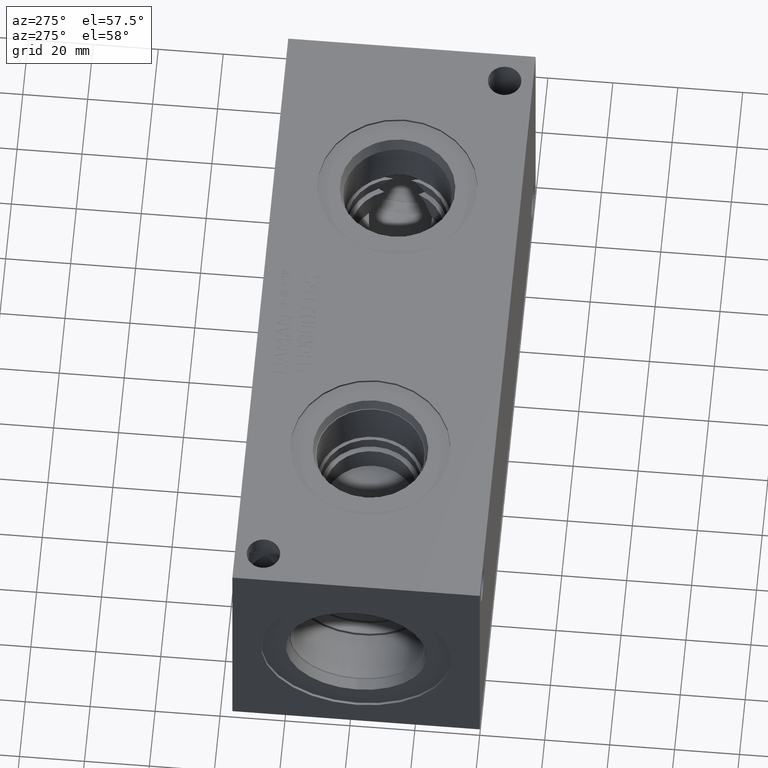
[diagram: clean part render]
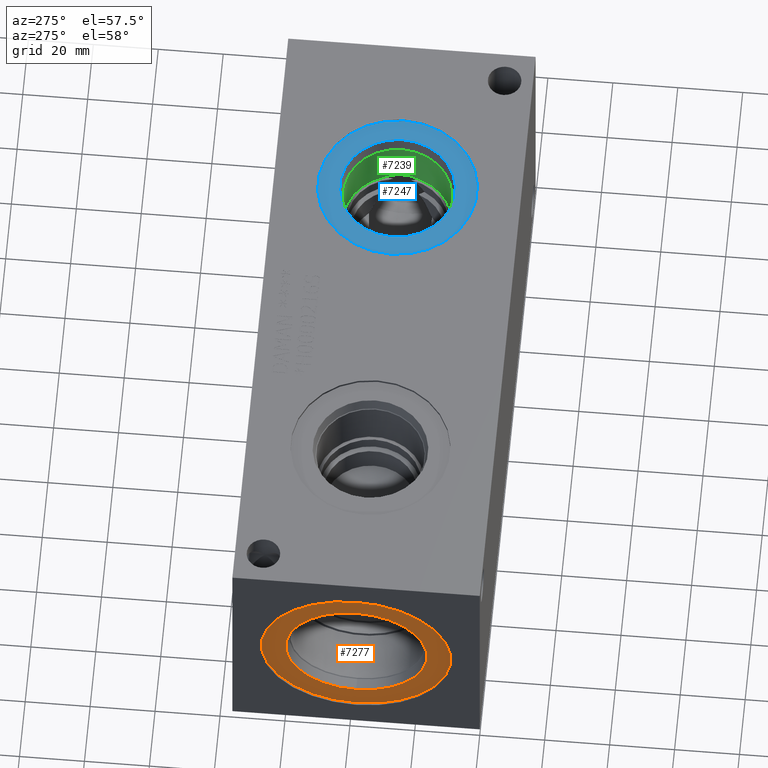
[diagram: same view with three faces highlighted in distinct colors, each labeled with its STEP entity id]
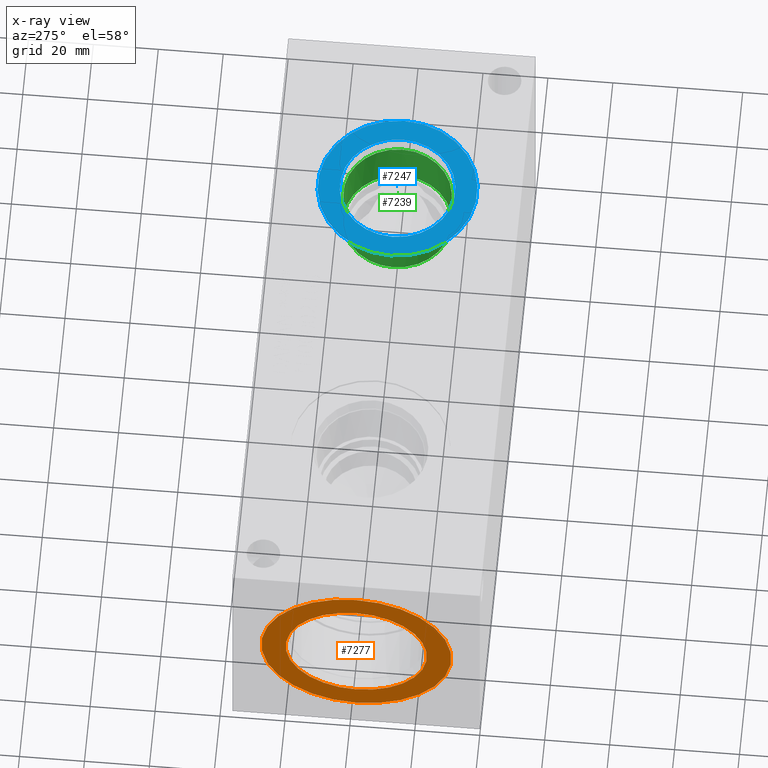
[diagram: x-ray of the same camera — body ghosted, the three highlighted faces saturated]
A machine part, auxiliary view with three faces highlighted in distinct colors.
The next image is the same camera in x-ray (body ghosted, the three faces saturated) — at least one of them is partly hidden behind the body in this view.
Their STEP definitions:

[orange] entity #7277 — the highlighted planar face has unit normal (1, 0, 0).
#153=CIRCLE('',#7642,29.2862);
#154=CIRCLE('',#7643,29.2862);
#155=CIRCLE('',#7645,21.7551);
#156=CIRCLE('',#7646,21.7551);
#198=FACE_BOUND('',#1307,.T.);
#901=FACE_OUTER_BOUND('',#1306,.T.);
#1306=EDGE_LOOP('',(#6348,#6349));
#1307=EDGE_LOOP('',(#6350,#6351));
#3354=VERTEX_POINT('',#12669);
#3355=VERTEX_POINT('',#12671);
#3356=VERTEX_POINT('',#12675);
#3357=VERTEX_POINT('',#12676);
#4360=EDGE_CURVE('',#3354,#3355,#153,.T.);
#4361=EDGE_CURVE('',#3355,#3354,#154,.T.);
#4362=EDGE_CURVE('',#3356,#3357,#155,.T.);
#4363=EDGE_CURVE('',#3357,#3356,#156,.T.);
#6348=ORIENTED_EDGE('',*,*,#4361,.F.);
#6349=ORIENTED_EDGE('',*,*,#4360,.F.);
#6350=ORIENTED_EDGE('',*,*,#4362,.T.);
#6351=ORIENTED_EDGE('',*,*,#4363,.T.);
#6614=PLANE('',#7644);
#7277=ADVANCED_FACE('',(#901,#198),#6614,.F.);
#7642=AXIS2_PLACEMENT_3D('',#12672,#9015,#9016);
#7643=AXIS2_PLACEMENT_3D('',#12673,#9017,#9018);
#7644=AXIS2_PLACEMENT_3D('',#12674,#9019,#9020);
#7645=AXIS2_PLACEMENT_3D('',#12677,#9021,#9022);
#7646=AXIS2_PLACEMENT_3D('',#12678,#9023,#9024);
#9015=DIRECTION('center_axis',(1.,0.,0.));
#9016=DIRECTION('ref_axis',(0.,0.,-1.));
#9017=DIRECTION('center_axis',(1.,0.,0.));
#9018=DIRECTION('ref_axis',(0.,0.,-1.));
#9019=DIRECTION('center_axis',(1.,0.,0.));
#9020=DIRECTION('ref_axis',(0.,0.,-1.));
#9021=DIRECTION('center_axis',(1.,0.,0.));
#9022=DIRECTION('ref_axis',(0.,0.,-1.));
#9023=DIRECTION('center_axis',(1.,0.,0.));
#9024=DIRECTION('ref_axis',(0.,0.,-1.));
#12669=CARTESIAN_POINT('',(0.7874,38.1,8.8138));
#12671=CARTESIAN_POINT('',(0.7874,38.1,67.3862));
#12672=CARTESIAN_POINT('Origin',(0.7874,38.1,38.1));
#12673=CARTESIAN_POINT('Origin',(0.7874,38.1,38.1));
#12674=CARTESIAN_POINT('Origin',(0.7874,38.1,59.8551));
#12675=CARTESIAN_POINT('',(0.7874,38.1,59.8551));
#12676=CARTESIAN_POINT('',(0.787400000000001,38.1,16.3449));
#12677=CARTESIAN_POINT('Origin',(0.7874,38.1,38.1));
#12678=CARTESIAN_POINT('Origin',(0.7874,38.1,38.1));

[blue] entity #7247 — the highlighted planar face has unit normal (0, 0, 1).
#110=CIRCLE('',#7570,24.5618);
#111=CIRCLE('',#7571,24.5618);
#112=CIRCLE('',#7572,17.7546);
#193=FACE_BOUND('',#1272,.T.);
#871=FACE_OUTER_BOUND('',#1271,.T.);
#1271=EDGE_LOOP('',(#6187,#6188));
#1272=EDGE_LOOP('',(#6189));
#3302=VERTEX_POINT('',#12430);
#3303=VERTEX_POINT('',#12431);
#3304=VERTEX_POINT('',#12434);
#4283=EDGE_CURVE('',#3302,#3303,#110,.T.);
#4284=EDGE_CURVE('',#3303,#3302,#111,.T.);
#4285=EDGE_CURVE('',#3304,#3304,#112,.T.);
#6187=ORIENTED_EDGE('',*,*,#4283,.T.);
#6188=ORIENTED_EDGE('',*,*,#4284,.T.);
#6189=ORIENTED_EDGE('',*,*,#4285,.F.);
#6608=PLANE('',#7569);
#7247=ADVANCED_FACE('',(#871,#193),#6608,.T.);
#7569=AXIS2_PLACEMENT_3D('',#12429,#8847,#8848);
#7570=AXIS2_PLACEMENT_3D('',#12432,#8849,#8850);
#7571=AXIS2_PLACEMENT_3D('',#12433,#8851,#8852);
#7572=AXIS2_PLACEMENT_3D('',#12435,#8853,#8854);
#8847=DIRECTION('center_axis',(0.,0.,1.));
#8848=DIRECTION('ref_axis',(1.,0.,0.));
#8849=DIRECTION('center_axis',(0.,0.,1.));
#8850=DIRECTION('ref_axis',(1.,0.,0.));
#8851=DIRECTION('center_axis',(0.,0.,1.));
#8852=DIRECTION('ref_axis',(1.,0.,0.));
#8853=DIRECTION('center_axis',(0.,0.,1.));
#8854=DIRECTION('ref_axis',(1.,0.,0.));
#12429=CARTESIAN_POINT('Origin',(146.05,38.1,75.4126));
#12430=CARTESIAN_POINT('',(170.6118,38.1,75.4126));
#12431=CARTESIAN_POINT('',(121.4882,38.1,75.4126));
#12432=CARTESIAN_POINT('Origin',(146.05,38.1,75.4126));
#12433=CARTESIAN_POINT('Origin',(146.05,38.1,75.4126));
#12434=CARTESIAN_POINT('',(128.2954,38.1,75.4126));
#12435=CARTESIAN_POINT('Origin',(146.05,38.1,75.4126));

[green] entity #7239 — the highlighted cylindrical surface (bore or boss wall) has radius 16.6751 mm, axis along (0, 0, 1).
#56=CYLINDRICAL_SURFACE('',#7552,16.6751);
#99=CIRCLE('',#7550,16.6751);
#100=CIRCLE('',#7551,16.6751);
#101=CIRCLE('',#7553,16.6751);
#429=B_SPLINE_CURVE_WITH_KNOTS('',3,(#12391,#12392,#12393,#12394,#12395,
#12396,#12397,#12398,#12399,#12400),.UNSPECIFIED.,.F.,.F.,(4,2,2,2,4),(2.22089325223237,
2.43211778457251,2.76779636109291,3.10347493761331,3.31469946995344),
 .UNSPECIFIED.);
#863=FACE_OUTER_BOUND('',#1263,.T.);
#1263=EDGE_LOOP('',(#6143,#6144,#6145,#6146,#6147,#6148));
#1968=LINE('',#12390,#2650);
#2650=VECTOR('',#8811,16.6751);
#3289=VERTEX_POINT('',#12376);
#3290=VERTEX_POINT('',#12378);
#3291=VERTEX_POINT('',#12380);
#3293=VERTEX_POINT('',#12388);
#4263=EDGE_CURVE('',#3289,#3290,#99,.T.);
#4264=EDGE_CURVE('',#3290,#3291,#100,.T.);
#4267=EDGE_CURVE('',#3293,#3293,#101,.T.);
#4268=EDGE_CURVE('',#3293,#3290,#1968,.T.);
#4269=EDGE_CURVE('',#3291,#3289,#429,.T.);
#6143=ORIENTED_EDGE('',*,*,#4267,.F.);
#6144=ORIENTED_EDGE('',*,*,#4268,.T.);
#6145=ORIENTED_EDGE('',*,*,#4263,.F.);
#6146=ORIENTED_EDGE('',*,*,#4269,.F.);
#6147=ORIENTED_EDGE('',*,*,#4264,.F.);
#6148=ORIENTED_EDGE('',*,*,#4268,.F.);
#7239=ADVANCED_FACE('',(#863),#56,.F.);
#7550=AXIS2_PLACEMENT_3D('',#12379,#8802,#8803);
#7551=AXIS2_PLACEMENT_3D('',#12381,#8804,#8805);
#7552=AXIS2_PLACEMENT_3D('',#12387,#8807,#8808);
#7553=AXIS2_PLACEMENT_3D('',#12389,#8809,#8810);
#8802=DIRECTION('center_axis',(0.,0.,1.));
#8803=DIRECTION('ref_axis',(1.,0.,0.));
#8804=DIRECTION('center_axis',(0.,0.,1.));
#8805=DIRECTION('ref_axis',(1.,0.,0.));
#8807=DIRECTION('center_axis',(0.,0.,1.));
#8808=DIRECTION('ref_axis',(1.,0.,0.));
#8809=DIRECTION('center_axis',(0.,0.,-1.));
#8810=DIRECTION('ref_axis',(1.,0.,0.));
#8811=DIRECTION('',(0.,0.,-1.));
#12376=CARTESIAN_POINT('',(161.819559878766,43.5203266728123,56.3626));
#12378=CARTESIAN_POINT('',(129.3749,38.1,56.3626));
#12379=CARTESIAN_POINT('Origin',(146.05,38.1,56.3626));
#12380=CARTESIAN_POINT('',(161.819559878766,32.6796733271877,56.3626));
#12381=CARTESIAN_POINT('Origin',(146.05,38.1,56.3626));
#12387=CARTESIAN_POINT('Origin',(146.05,38.1,66.2813));
#12388=CARTESIAN_POINT('',(129.3749,38.1,71.3763211532294));
#12389=CARTESIAN_POINT('Origin',(146.05,38.1,71.3763211532294));
#12390=CARTESIAN_POINT('',(129.3749,38.1,66.2813));
#12391=CARTESIAN_POINT('Ctrl Pts',(161.819559878766,32.6796733271877,56.3626));
#12392=CARTESIAN_POINT('Ctrl Pts',(162.049310402761,33.3480951519235,56.5609871215109));
#12393=CARTESIAN_POINT('Ctrl Pts',(162.238082854768,34.0363244136683,56.7250521717093));
#12394=CARTESIAN_POINT('Ctrl Pts',(162.610706075436,35.8447197143579,57.0496148423198));
#12395=CARTESIAN_POINT('Ctrl Pts',(162.7251,36.9810714115987,57.15));
#12396=CARTESIAN_POINT('Ctrl Pts',(162.7251,39.2189285884013,57.15));
#12397=CARTESIAN_POINT('Ctrl Pts',(162.610706075436,40.3552802856422,57.0496148423198));
#12398=CARTESIAN_POINT('Ctrl Pts',(162.238082854768,42.1636755863317,56.7250521717093));
#12399=CARTESIAN_POINT('Ctrl Pts',(162.049310402761,42.8519048480765,56.5609871215109));
#12400=CARTESIAN_POINT('Ctrl Pts',(161.819559878766,43.5203266728123,56.3626));